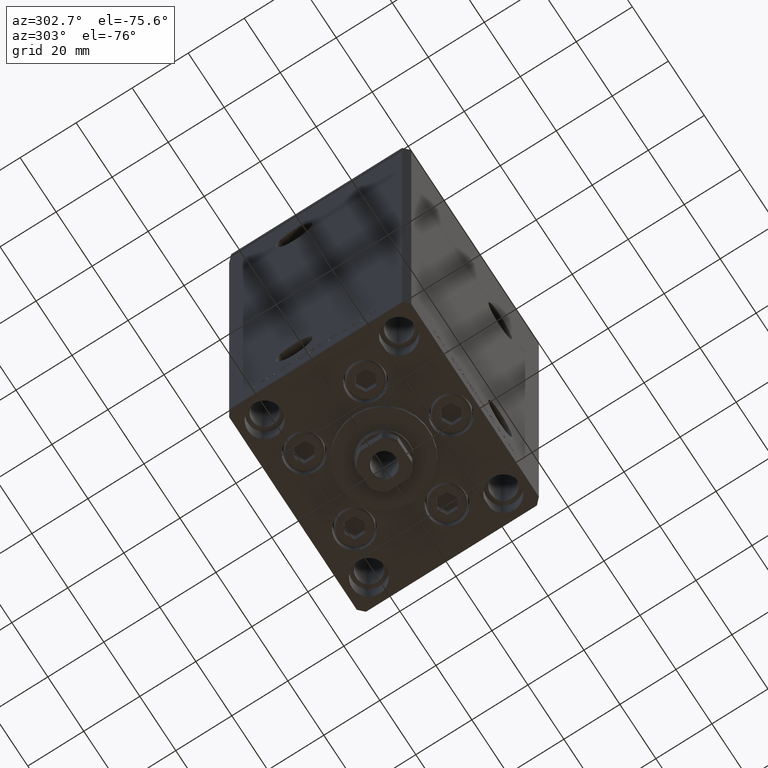
[diagram: clean part render]
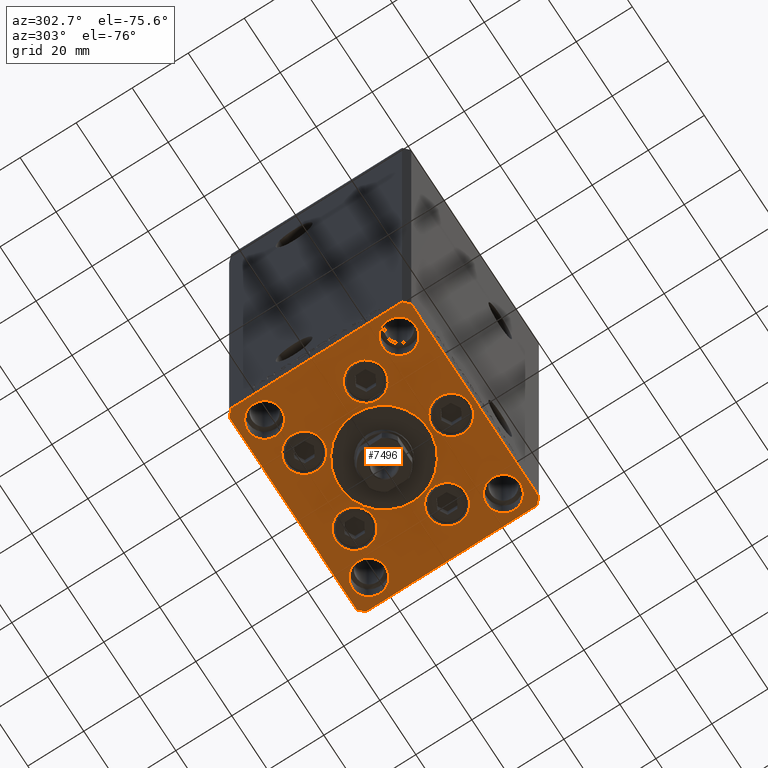
[diagram: same view with one face highlighted and labeled with its STEP entity id]
A machine part, auxiliary view. The second image highlights one B-rep face of the part: STEP entity #7496.
In plain terms, the highlighted planar face has unit normal (0, 0, -1).
Its self-contained STEP definition (entity closure, byte-faithful):
#448 = DIRECTION ( 'NONE',  ( 0.000000000000000000, 0.000000000000000000, 1.000000000000000000 ) ) ;
#591 = ORIENTED_EDGE ( 'NONE', *, *, #49403, .F. ) ;
#680 = VERTEX_POINT ( 'NONE', #43965 ) ;
#1052 = AXIS2_PLACEMENT_3D ( 'NONE', #13567, #44483, #48988 ) ;
#1342 = ORIENTED_EDGE ( 'NONE', *, *, #5712, .F. ) ;
#2032 = VERTEX_POINT ( 'NONE', #35572 ) ;
#2168 = CARTESIAN_POINT ( 'NONE',  ( -29.37741699796953654, -8.000000000000000000, 0.000000000000000000 ) ) ;
#2243 = DIRECTION ( 'NONE',  ( 1.000000000000000000, 0.000000000000000000, 0.000000000000000000 ) ) ;
#2322 = VERTEX_POINT ( 'NONE', #11351 ) ;
#2367 = VERTEX_POINT ( 'NONE', #47262 ) ;
#2370 = DIRECTION ( 'NONE',  ( 1.000000000000000000, 0.000000000000000000, 0.000000000000000000 ) ) ;
#2395 = CIRCLE ( 'NONE', #20859, 6.750000000000009770 ) ;
#2895 = CARTESIAN_POINT ( 'NONE',  ( -6.750000000001552536, -24.00000000000001066, 0.000000000000000000 ) ) ;
#3030 = CARTESIAN_POINT ( 'NONE',  ( -29.00000000000000000, 24.00000000000000711, 0.000000000000000000 ) ) ;
#3071 = FACE_BOUND ( 'NONE', #34334, .T. ) ;
#3248 = EDGE_CURVE ( 'NONE', #22762, #2032, #23203, .T. ) ;
#3507 = CARTESIAN_POINT ( 'NONE',  ( -15.87741699796953476, -8.000000000000000000, 0.000000000000000000 ) ) ;
#4060 = EDGE_LOOP ( 'NONE', ( #591, #20947 ) ) ;
#4130 = DIRECTION ( 'NONE',  ( 1.000000000000000000, 0.000000000000000000, 0.000000000000000000 ) ) ;
#4272 = DIRECTION ( 'NONE',  ( 1.000000000000000000, 0.000000000000000000, 0.000000000000000000 ) ) ;
#4467 = VERTEX_POINT ( 'NONE', #7173 ) ;
#4607 = EDGE_CURVE ( 'NONE', #680, #29430, #24202, .T. ) ;
#5123 = CARTESIAN_POINT ( 'NONE',  ( -37.50000000000000000, -30.50000000000004263, 0.000000000000000000 ) ) ;
#5201 = VERTEX_POINT ( 'NONE', #34693 ) ;
#5205 = EDGE_CURVE ( 'NONE', #13237, #31258, #39752, .T. ) ;
#5367 = CARTESIAN_POINT ( 'NONE',  ( -7.241068579633241242, 19.50000000000000000, 0.000000000000000000 ) ) ;
#5369 = DIRECTION ( 'NONE',  ( 0.7071067811865512365, -0.7071067811865439090, 0.000000000000000000 ) ) ;
#5712 = EDGE_CURVE ( 'NONE', #49516, #19475, #34175, .T. ) ;
#6687 = CARTESIAN_POINT ( 'NONE',  ( 29.00000000000000355, -23.99999999999999645, 0.000000000000000000 ) ) ;
#6959 = AXIS2_PLACEMENT_3D ( 'NONE', #48256, #10050, #48500 ) ;
#7173 = CARTESIAN_POINT ( 'NONE',  ( 16.00000000000000355, -4.979459025271462852E-15, 0.000000000000000000 ) ) ;
#7196 = ORIENTED_EDGE ( 'NONE', *, *, #3248, .T. ) ;
#7496 = ADVANCED_FACE ( 'NONE', ( #13882, #48558, #33740, #3071, #37759, #10860, #45299, #29201, #14126, #18143, #17406 ), #32739, .T. ) ;
#7614 = LINE ( 'NONE', #22684, #46458 ) ;
#7647 = DIRECTION ( 'NONE',  ( 0.000000000000000000, 0.000000000000000000, 1.000000000000000000 ) ) ;
#7656 = VECTOR ( 'NONE', #5369, 1000.000000000000000 ) ;
#8403 = DIRECTION ( 'NONE',  ( 0.000000000000000000, 0.000000000000000000, 1.000000000000000000 ) ) ;
#8842 = VERTEX_POINT ( 'NONE', #20203 ) ;
#9129 = CARTESIAN_POINT ( 'NONE',  ( 20.74106857963323947, 19.50000000000000000, 0.000000000000000000 ) ) ;
#9136 = DIRECTION ( 'NONE',  ( 1.000000000000000000, 0.000000000000000000, 0.000000000000000000 ) ) ;
#9214 = VECTOR ( 'NONE', #10915, 1000.000000000000000 ) ;
#9283 = CARTESIAN_POINT ( 'NONE',  ( 29.00000000000000000, 24.00000000000000355, 0.000000000000000000 ) ) ;
#9548 = ORIENTED_EDGE ( 'NONE', *, *, #5205, .F. ) ;
#9596 = CIRCLE ( 'NONE', #13620, 6.750000000000000000 ) ;
#9655 = DIRECTION ( 'NONE',  ( 0.000000000000000000, 0.000000000000000000, 1.000000000000000000 ) ) ;
#9782 = CIRCLE ( 'NONE', #38674, 5.999999999999998224 ) ;
#9922 = DIRECTION ( 'NONE',  ( 1.000000000000000000, 0.000000000000000000, 0.000000000000000000 ) ) ;
#10050 = DIRECTION ( 'NONE',  ( 0.000000000000000000, 0.000000000000000000, 1.000000000000000000 ) ) ;
#10144 = CIRCLE ( 'NONE', #38256, 16.00000000000000355 ) ;
#10151 = CARTESIAN_POINT ( 'NONE',  ( -22.62741699796953299, -8.000000000000000000, 0.000000000000000000 ) ) ;
#10183 = CIRCLE ( 'NONE', #6959, 16.00000000000000355 ) ;
#10450 = EDGE_CURVE ( 'NONE', #46235, #23773, #18539, .T. ) ;
#10455 = DIRECTION ( 'NONE',  ( 1.000000000000000000, 1.172770800660376149E-15, 0.000000000000000000 ) ) ;
#10469 = DIRECTION ( 'NONE',  ( 2.275047181608926165E-16, -1.000000000000000000, 0.000000000000000000 ) ) ;
#10599 = DIRECTION ( 'NONE',  ( 1.000000000000000000, 0.000000000000000000, 0.000000000000000000 ) ) ;
#10860 = FACE_BOUND ( 'NONE', #18347, .T. ) ;
#10892 = EDGE_CURVE ( 'NONE', #19475, #49516, #19059, .T. ) ;
#10915 = DIRECTION ( 'NONE',  ( -0.7071067811865524577, -0.7071067811865426878, 0.000000000000000000 ) ) ;
#11136 = DIRECTION ( 'NONE',  ( 0.7071067811865463515, 0.7071067811865487940, 0.000000000000000000 ) ) ;
#11351 = CARTESIAN_POINT ( 'NONE',  ( 35.00000000000000000, 24.00000000000000355, 0.000000000000000000 ) ) ;
#11381 = EDGE_LOOP ( 'NONE', ( #39054, #17623 ) ) ;
#11663 = DIRECTION ( 'NONE',  ( 0.000000000000000000, 0.000000000000000000, 1.000000000000000000 ) ) ;
#12125 = CARTESIAN_POINT ( 'NONE',  ( 23.00000000000000711, -23.99999999999999645, 0.000000000000000000 ) ) ;
#12180 = DIRECTION ( 'NONE',  ( 0.000000000000000000, 0.000000000000000000, 1.000000000000000000 ) ) ;
#12239 = CARTESIAN_POINT ( 'NONE',  ( -13.99106857963324124, 19.50000000000000000, 0.000000000000000000 ) ) ;
#12661 = CIRCLE ( 'NONE', #40755, 5.999999999999998224 ) ;
#12812 = DIRECTION ( 'NONE',  ( 1.000000000000000000, 0.000000000000000000, 0.000000000000000000 ) ) ;
#12983 = EDGE_CURVE ( 'NONE', #31231, #15478, #35097, .T. ) ;
#13163 = CARTESIAN_POINT ( 'NONE',  ( 22.62741699796953299, -8.000000000000000000, 0.000000000000000000 ) ) ;
#13237 = VERTEX_POINT ( 'NONE', #21554 ) ;
#13466 = CARTESIAN_POINT ( 'NONE',  ( 6.750000000001552536, -24.00000000000001066, 0.000000000000000000 ) ) ;
#13567 = CARTESIAN_POINT ( 'NONE',  ( 22.62741699796953299, -8.000000000000000000, 0.000000000000000000 ) ) ;
#13620 = AXIS2_PLACEMENT_3D ( 'NONE', #31037, #8403, #15708 ) ;
#13697 = CARTESIAN_POINT ( 'NONE',  ( 29.00000000000000000, 24.00000000000000355, 0.000000000000000000 ) ) ;
#13882 = FACE_BOUND ( 'NONE', #11381, .T. ) ;
#14126 = FACE_BOUND ( 'NONE', #16147, .T. ) ;
#14379 = DIRECTION ( 'NONE',  ( -0.000000000000000000, 0.000000000000000000, 1.000000000000000000 ) ) ;
#14487 = LINE ( 'NONE', #37117, #24872 ) ;
#14895 = EDGE_LOOP ( 'NONE', ( #39978, #38215 ) ) ;
#15402 = CIRCLE ( 'NONE', #26651, 6.750000000001552536 ) ;
#15426 = DIRECTION ( 'NONE',  ( 0.000000000000000000, 0.000000000000000000, 1.000000000000000000 ) ) ;
#15430 = EDGE_CURVE ( 'NONE', #27486, #15770, #12661, .T. ) ;
#15448 = ORIENTED_EDGE ( 'NONE', *, *, #10892, .F. ) ;
#15478 = VERTEX_POINT ( 'NONE', #3507 ) ;
#15617 = EDGE_CURVE ( 'NONE', #38502, #46235, #40399, .T. ) ;
#15708 = DIRECTION ( 'NONE',  ( 1.000000000000000000, 0.000000000000000000, 0.000000000000000000 ) ) ;
#15770 = VERTEX_POINT ( 'NONE', #37874 ) ;
#15964 = ORIENTED_EDGE ( 'NONE', *, *, #44309, .T. ) ;
#16009 = ORIENTED_EDGE ( 'NONE', *, *, #36647, .F. ) ;
#16098 = EDGE_CURVE ( 'NONE', #2322, #44807, #31972, .T. ) ;
#16147 = EDGE_LOOP ( 'NONE', ( #32349, #16589 ) ) ;
#16517 = ORIENTED_EDGE ( 'NONE', *, *, #16098, .F. ) ;
#16589 = ORIENTED_EDGE ( 'NONE', *, *, #24977, .F. ) ;
#17406 = FACE_OUTER_BOUND ( 'NONE', #33452, .T. ) ;
#17623 = ORIENTED_EDGE ( 'NONE', *, *, #37973, .F. ) ;
#17790 = CIRCLE ( 'NONE', #33037, 6.000000000000001776 ) ;
#18086 = AXIS2_PLACEMENT_3D ( 'NONE', #3030, #37958, #38456 ) ;
#18143 = FACE_BOUND ( 'NONE', #14895, .T. ) ;
#18347 = EDGE_LOOP ( 'NONE', ( #23173, #45454 ) ) ;
#18539 = LINE ( 'NONE', #30098, #25344 ) ;
#18932 = CARTESIAN_POINT ( 'NONE',  ( 29.37741699796954364, -8.000000000000000000, 0.000000000000000000 ) ) ;
#19059 = CIRCLE ( 'NONE', #33408, 6.749999999999997335 ) ;
#19463 = CARTESIAN_POINT ( 'NONE',  ( 13.99106857963324124, 19.50000000000000000, 0.000000000000000000 ) ) ;
#19475 = VERTEX_POINT ( 'NONE', #9129 ) ;
#19698 = ORIENTED_EDGE ( 'NONE', *, *, #39365, .F. ) ;
#20096 = DIRECTION ( 'NONE',  ( 1.000000000000000000, 0.000000000000000000, 0.000000000000000000 ) ) ;
#20203 = CARTESIAN_POINT ( 'NONE',  ( 35.50000000000001421, -32.49999999999992184, 0.000000000000000000 ) ) ;
#20705 = CARTESIAN_POINT ( 'NONE',  ( 7.241068579633242130, 19.50000000000000000, 0.000000000000000000 ) ) ;
#20859 = AXIS2_PLACEMENT_3D ( 'NONE', #13163, #28489, #9136 ) ;
#20909 = DIRECTION ( 'NONE',  ( -1.000000000000000000, -1.954618001100627573E-16, 0.000000000000000000 ) ) ;
#20944 = ORIENTED_EDGE ( 'NONE', *, *, #48746, .F. ) ;
#20947 = ORIENTED_EDGE ( 'NONE', *, *, #48280, .F. ) ;
#21086 = EDGE_LOOP ( 'NONE', ( #15448, #1342 ) ) ;
#21554 = CARTESIAN_POINT ( 'NONE',  ( -35.00000000000000000, 24.00000000000000711, 0.000000000000000000 ) ) ;
#21645 = EDGE_LOOP ( 'NONE', ( #24750, #16009 ) ) ;
#21777 = CARTESIAN_POINT ( 'NONE',  ( 37.50000000000000711, -30.49999999999992895, 0.000000000000000000 ) ) ;
#22139 = CARTESIAN_POINT ( 'NONE',  ( -29.00000000000000000, -23.99999999999999645, 0.000000000000000000 ) ) ;
#22684 = CARTESIAN_POINT ( 'NONE',  ( 35.50000000000001421, -32.49999999999992184, 0.000000000000000000 ) ) ;
#22762 = VERTEX_POINT ( 'NONE', #33399 ) ;
#22964 = DIRECTION ( 'NONE',  ( 1.000000000000000000, 0.000000000000000000, 0.000000000000000000 ) ) ;
#23173 = ORIENTED_EDGE ( 'NONE', *, *, #23509, .F. ) ;
#23203 = LINE ( 'NONE', #34545, #9214 ) ;
#23504 = VECTOR ( 'NONE', #10455, 1000.000000000000000 ) ;
#23509 = EDGE_CURVE ( 'NONE', #15478, #31231, #46678, .T. ) ;
#23773 = VERTEX_POINT ( 'NONE', #44530 ) ;
#24137 = EDGE_CURVE ( 'NONE', #2032, #680, #14487, .T. ) ;
#24202 = LINE ( 'NONE', #5123, #7656 ) ;
#24596 = DIRECTION ( 'NONE',  ( 0.000000000000000000, 0.000000000000000000, 1.000000000000000000 ) ) ;
#24750 = ORIENTED_EDGE ( 'NONE', *, *, #27888, .F. ) ;
#24872 = VECTOR ( 'NONE', #10469, 1000.000000000000000 ) ;
#24977 = EDGE_CURVE ( 'NONE', #49571, #5201, #45790, .T. ) ;
#25344 = VECTOR ( 'NONE', #33882, 1000.000000000000000 ) ;
#25447 = AXIS2_PLACEMENT_3D ( 'NONE', #9283, #24596, #2243 ) ;
#25506 = DIRECTION ( 'NONE',  ( 1.000000000000000000, 0.000000000000000000, 0.000000000000000000 ) ) ;
#25678 = ORIENTED_EDGE ( 'NONE', *, *, #30185, .F. ) ;
#26364 = VECTOR ( 'NONE', #48925, 1000.000000000000000 ) ;
#26521 = CARTESIAN_POINT ( 'NONE',  ( -35.50000000000001421, -32.50000000000000711, 0.000000000000000000 ) ) ;
#26651 = AXIS2_PLACEMENT_3D ( 'NONE', #37655, #49451, #37158 ) ;
#26673 = ORIENTED_EDGE ( 'NONE', *, *, #28423, .F. ) ;
#26708 = VERTEX_POINT ( 'NONE', #48764 ) ;
#27200 = VERTEX_POINT ( 'NONE', #13466 ) ;
#27327 = EDGE_LOOP ( 'NONE', ( #16517, #19698 ) ) ;
#27486 = VERTEX_POINT ( 'NONE', #12125 ) ;
#27561 = VERTEX_POINT ( 'NONE', #34197 ) ;
#27868 = ORIENTED_EDGE ( 'NONE', *, *, #24137, .T. ) ;
#27888 = EDGE_CURVE ( 'NONE', #27200, #45772, #15402, .T. ) ;
#28033 = CIRCLE ( 'NONE', #47321, 6.750000000000000000 ) ;
#28113 = AXIS2_PLACEMENT_3D ( 'NONE', #22139, #29701, #10599 ) ;
#28135 = DIRECTION ( 'NONE',  ( 0.000000000000000000, 0.000000000000000000, 1.000000000000000000 ) ) ;
#28351 = EDGE_CURVE ( 'NONE', #15770, #27486, #9782, .T. ) ;
#28423 = EDGE_CURVE ( 'NONE', #31258, #13237, #17790, .T. ) ;
#28489 = DIRECTION ( 'NONE',  ( 0.000000000000000000, 0.000000000000000000, 1.000000000000000000 ) ) ;
#28703 = LINE ( 'NONE', #36013, #38389 ) ;
#29201 = FACE_BOUND ( 'NONE', #32769, .T. ) ;
#29342 = AXIS2_PLACEMENT_3D ( 'NONE', #47905, #48397, #25506 ) ;
#29384 = DIRECTION ( 'NONE',  ( 1.000000000000000000, 0.000000000000000000, 0.000000000000000000 ) ) ;
#29430 = VERTEX_POINT ( 'NONE', #32913 ) ;
#29701 = DIRECTION ( 'NONE',  ( 0.000000000000000000, 0.000000000000000000, 1.000000000000000000 ) ) ;
#29945 = CIRCLE ( 'NONE', #41187, 6.000000000000001776 ) ;
#30098 = CARTESIAN_POINT ( 'NONE',  ( 37.50000000000000711, 30.50000000000001421, 0.000000000000000000 ) ) ;
#30185 = EDGE_CURVE ( 'NONE', #42176, #26708, #37127, .T. ) ;
#30519 = CARTESIAN_POINT ( 'NONE',  ( 0.000000000000000000, -6.938893903907228378E-15, 0.000000000000000000 ) ) ;
#30980 = ORIENTED_EDGE ( 'NONE', *, *, #10450, .T. ) ;
#31029 = EDGE_CURVE ( 'NONE', #5201, #49571, #29945, .T. ) ;
#31037 = CARTESIAN_POINT ( 'NONE',  ( -13.99106857963324124, 19.50000000000000000, 0.000000000000000000 ) ) ;
#31231 = VERTEX_POINT ( 'NONE', #2168 ) ;
#31258 = VERTEX_POINT ( 'NONE', #37848 ) ;
#31336 = EDGE_CURVE ( 'NONE', #29430, #8842, #37104, .T. ) ;
#31426 = DIRECTION ( 'NONE',  ( 0.000000000000000000, 0.000000000000000000, 1.000000000000000000 ) ) ;
#31770 = DIRECTION ( 'NONE',  ( 1.000000000000000000, 0.000000000000000000, 0.000000000000000000 ) ) ;
#31972 = CIRCLE ( 'NONE', #34388, 6.000000000000001776 ) ;
#32349 = ORIENTED_EDGE ( 'NONE', *, *, #31029, .F. ) ;
#32739 = PLANE ( 'NONE',  #46262 ) ;
#32769 = EDGE_LOOP ( 'NONE', ( #26673, #9548 ) ) ;
#32913 = CARTESIAN_POINT ( 'NONE',  ( -35.50000000000001421, -32.50000000000000711, 0.000000000000000000 ) ) ;
#33037 = AXIS2_PLACEMENT_3D ( 'NONE', #43229, #31426, #12812 ) ;
#33166 = CARTESIAN_POINT ( 'NONE',  ( 29.00000000000000355, -23.99999999999999645, 0.000000000000000000 ) ) ;
#33399 = CARTESIAN_POINT ( 'NONE',  ( -35.50000000000000711, 32.49999999999997868, 0.000000000000000000 ) ) ;
#33408 = AXIS2_PLACEMENT_3D ( 'NONE', #19463, #12180, #31770 ) ;
#33444 = CARTESIAN_POINT ( 'NONE',  ( -22.62741699796953299, -8.000000000000000000, 0.000000000000000000 ) ) ;
#33452 = EDGE_LOOP ( 'NONE', ( #39967, #43276, #41870, #35600, #30980, #15964, #7196, #27868 ) ) ;
#33487 = CARTESIAN_POINT ( 'NONE',  ( 0.000000000000000000, 0.000000000000000000, 0.000000000000000000 ) ) ;
#33491 = CARTESIAN_POINT ( 'NONE',  ( 37.50000000000000711, -30.49999999999992895, 0.000000000000000000 ) ) ;
#33740 = FACE_BOUND ( 'NONE', #21086, .T. ) ;
#33882 = DIRECTION ( 'NONE',  ( -0.7071067811865524577, 0.7071067811865426878, 0.000000000000000000 ) ) ;
#34175 = CIRCLE ( 'NONE', #29342, 6.749999999999997335 ) ;
#34197 = CARTESIAN_POINT ( 'NONE',  ( -16.00000000000000355, -6.938893903907228378E-15, 0.000000000000000000 ) ) ;
#34334 = EDGE_LOOP ( 'NONE', ( #25678, #20944 ) ) ;
#34388 = AXIS2_PLACEMENT_3D ( 'NONE', #13697, #44363, #9922 ) ;
#34545 = CARTESIAN_POINT ( 'NONE',  ( -35.50000000000000711, 32.49999999999997868, 0.000000000000000000 ) ) ;
#34693 = CARTESIAN_POINT ( 'NONE',  ( -23.00000000000000000, -23.99999999999999645, 0.000000000000000000 ) ) ;
#35022 = CIRCLE ( 'NONE', #44664, 6.750000000001552536 ) ;
#35097 = CIRCLE ( 'NONE', #42311, 6.749999999999999112 ) ;
#35572 = CARTESIAN_POINT ( 'NONE',  ( -37.50000000000001421, 30.50000000000000000, 0.000000000000000000 ) ) ;
#35600 = ORIENTED_EDGE ( 'NONE', *, *, #15617, .T. ) ;
#36013 = CARTESIAN_POINT ( 'NONE',  ( 35.50000000000000000, 32.49999999999999289, 0.000000000000000000 ) ) ;
#36647 = EDGE_CURVE ( 'NONE', #45772, #27200, #35022, .T. ) ;
#36720 = CARTESIAN_POINT ( 'NONE',  ( 37.50000000000000711, 30.50000000000001421, 0.000000000000000000 ) ) ;
#37104 = LINE ( 'NONE', #26521, #23504 ) ;
#37117 = CARTESIAN_POINT ( 'NONE',  ( -37.50000000000001421, 30.50000000000000000, 0.000000000000000000 ) ) ;
#37127 = CIRCLE ( 'NONE', #1052, 6.750000000000009770 ) ;
#37158 = DIRECTION ( 'NONE',  ( 1.000000000000000000, 0.000000000000000000, 0.000000000000000000 ) ) ;
#37524 = EDGE_CURVE ( 'NONE', #27561, #4467, #10144, .T. ) ;
#37655 = CARTESIAN_POINT ( 'NONE',  ( 0.000000000000000000, -24.00000000000001066, 0.000000000000000000 ) ) ;
#37759 = FACE_BOUND ( 'NONE', #21645, .T. ) ;
#37848 = CARTESIAN_POINT ( 'NONE',  ( -23.00000000000000000, 24.00000000000000711, 0.000000000000000000 ) ) ;
#37874 = CARTESIAN_POINT ( 'NONE',  ( 35.00000000000000000, -23.99999999999999645, 0.000000000000000000 ) ) ;
#37958 = DIRECTION ( 'NONE',  ( 0.000000000000000000, 0.000000000000000000, 1.000000000000000000 ) ) ;
#37973 = EDGE_CURVE ( 'NONE', #4467, #27561, #10183, .T. ) ;
#38215 = ORIENTED_EDGE ( 'NONE', *, *, #15430, .F. ) ;
#38256 = AXIS2_PLACEMENT_3D ( 'NONE', #30519, #11663, #4130 ) ;
#38389 = VECTOR ( 'NONE', #20909, 1000.000000000000000 ) ;
#38456 = DIRECTION ( 'NONE',  ( 1.000000000000000000, 0.000000000000000000, 0.000000000000000000 ) ) ;
#38502 = VERTEX_POINT ( 'NONE', #33491 ) ;
#38547 = CARTESIAN_POINT ( 'NONE',  ( 0.000000000000000000, -24.00000000000001066, 0.000000000000000000 ) ) ;
#38674 = AXIS2_PLACEMENT_3D ( 'NONE', #6687, #28135, #20096 ) ;
#39054 = ORIENTED_EDGE ( 'NONE', *, *, #37524, .F. ) ;
#39365 = EDGE_CURVE ( 'NONE', #44807, #2322, #44748, .T. ) ;
#39752 = CIRCLE ( 'NONE', #18086, 6.000000000000001776 ) ;
#39967 = ORIENTED_EDGE ( 'NONE', *, *, #4607, .T. ) ;
#39978 = ORIENTED_EDGE ( 'NONE', *, *, #28351, .F. ) ;
#40399 = LINE ( 'NONE', #21777, #26364 ) ;
#40755 = AXIS2_PLACEMENT_3D ( 'NONE', #33166, #48491, #29384 ) ;
#41049 = AXIS2_PLACEMENT_3D ( 'NONE', #10151, #9655, #2370 ) ;
#41187 = AXIS2_PLACEMENT_3D ( 'NONE', #42080, #7647, #22964 ) ;
#41238 = DIRECTION ( 'NONE',  ( 0.000000000000000000, 0.000000000000000000, 1.000000000000000000 ) ) ;
#41870 = ORIENTED_EDGE ( 'NONE', *, *, #46927, .T. ) ;
#42080 = CARTESIAN_POINT ( 'NONE',  ( -29.00000000000000000, -23.99999999999999645, 0.000000000000000000 ) ) ;
#42176 = VERTEX_POINT ( 'NONE', #18932 ) ;
#42311 = AXIS2_PLACEMENT_3D ( 'NONE', #33444, #41238, #4272 ) ;
#42564 = DIRECTION ( 'NONE',  ( 1.000000000000000000, 0.000000000000000000, 0.000000000000000000 ) ) ;
#43229 = CARTESIAN_POINT ( 'NONE',  ( -29.00000000000000000, 24.00000000000000711, 0.000000000000000000 ) ) ;
#43276 = ORIENTED_EDGE ( 'NONE', *, *, #31336, .T. ) ;
#43965 = CARTESIAN_POINT ( 'NONE',  ( -37.50000000000000000, -30.50000000000004263, 0.000000000000000000 ) ) ;
#44309 = EDGE_CURVE ( 'NONE', #23773, #22762, #28703, .T. ) ;
#44363 = DIRECTION ( 'NONE',  ( 0.000000000000000000, 0.000000000000000000, 1.000000000000000000 ) ) ;
#44483 = DIRECTION ( 'NONE',  ( 0.000000000000000000, 0.000000000000000000, 1.000000000000000000 ) ) ;
#44530 = CARTESIAN_POINT ( 'NONE',  ( 35.50000000000000000, 32.49999999999999289, 0.000000000000000000 ) ) ;
#44575 = CARTESIAN_POINT ( 'NONE',  ( -35.00000000000000000, -23.99999999999999645, 0.000000000000000000 ) ) ;
#44664 = AXIS2_PLACEMENT_3D ( 'NONE', #38547, #15426, #42564 ) ;
#44748 = CIRCLE ( 'NONE', #25447, 6.000000000000001776 ) ;
#44807 = VERTEX_POINT ( 'NONE', #46894 ) ;
#45299 = FACE_BOUND ( 'NONE', #27327, .T. ) ;
#45454 = ORIENTED_EDGE ( 'NONE', *, *, #12983, .F. ) ;
#45772 = VERTEX_POINT ( 'NONE', #2895 ) ;
#45790 = CIRCLE ( 'NONE', #28113, 6.000000000000001776 ) ;
#46235 = VERTEX_POINT ( 'NONE', #36720 ) ;
#46262 = AXIS2_PLACEMENT_3D ( 'NONE', #33487, #14379, #48068 ) ;
#46458 = VECTOR ( 'NONE', #11136, 1000.000000000000000 ) ;
#46670 = DIRECTION ( 'NONE',  ( 1.000000000000000000, 0.000000000000000000, 0.000000000000000000 ) ) ;
#46678 = CIRCLE ( 'NONE', #41049, 6.749999999999999112 ) ;
#46894 = CARTESIAN_POINT ( 'NONE',  ( 23.00000000000000000, 24.00000000000000355, 0.000000000000000000 ) ) ;
#46927 = EDGE_CURVE ( 'NONE', #8842, #38502, #7614, .T. ) ;
#47262 = CARTESIAN_POINT ( 'NONE',  ( -20.74106857963324302, 19.50000000000000000, 0.000000000000000000 ) ) ;
#47321 = AXIS2_PLACEMENT_3D ( 'NONE', #12239, #448, #46670 ) ;
#47526 = VERTEX_POINT ( 'NONE', #5367 ) ;
#47905 = CARTESIAN_POINT ( 'NONE',  ( 13.99106857963324124, 19.50000000000000000, 0.000000000000000000 ) ) ;
#48068 = DIRECTION ( 'NONE',  ( 1.000000000000000000, 0.000000000000000000, 0.000000000000000000 ) ) ;
#48256 = CARTESIAN_POINT ( 'NONE',  ( 0.000000000000000000, -6.938893903907228378E-15, 0.000000000000000000 ) ) ;
#48280 = EDGE_CURVE ( 'NONE', #2367, #47526, #28033, .T. ) ;
#48397 = DIRECTION ( 'NONE',  ( 0.000000000000000000, 0.000000000000000000, 1.000000000000000000 ) ) ;
#48491 = DIRECTION ( 'NONE',  ( 0.000000000000000000, 0.000000000000000000, 1.000000000000000000 ) ) ;
#48500 = DIRECTION ( 'NONE',  ( 1.000000000000000000, 0.000000000000000000, 0.000000000000000000 ) ) ;
#48558 = FACE_BOUND ( 'NONE', #4060, .T. ) ;
#48746 = EDGE_CURVE ( 'NONE', #26708, #42176, #2395, .T. ) ;
#48764 = CARTESIAN_POINT ( 'NONE',  ( 15.87741699796952410, -8.000000000000000000, 0.000000000000000000 ) ) ;
#48925 = DIRECTION ( 'NONE',  ( 0.000000000000000000, 1.000000000000000000, 0.000000000000000000 ) ) ;
#48988 = DIRECTION ( 'NONE',  ( 1.000000000000000000, 0.000000000000000000, 0.000000000000000000 ) ) ;
#49403 = EDGE_CURVE ( 'NONE', #47526, #2367, #9596, .T. ) ;
#49451 = DIRECTION ( 'NONE',  ( 0.000000000000000000, 0.000000000000000000, 1.000000000000000000 ) ) ;
#49516 = VERTEX_POINT ( 'NONE', #20705 ) ;
#49571 = VERTEX_POINT ( 'NONE', #44575 ) ;